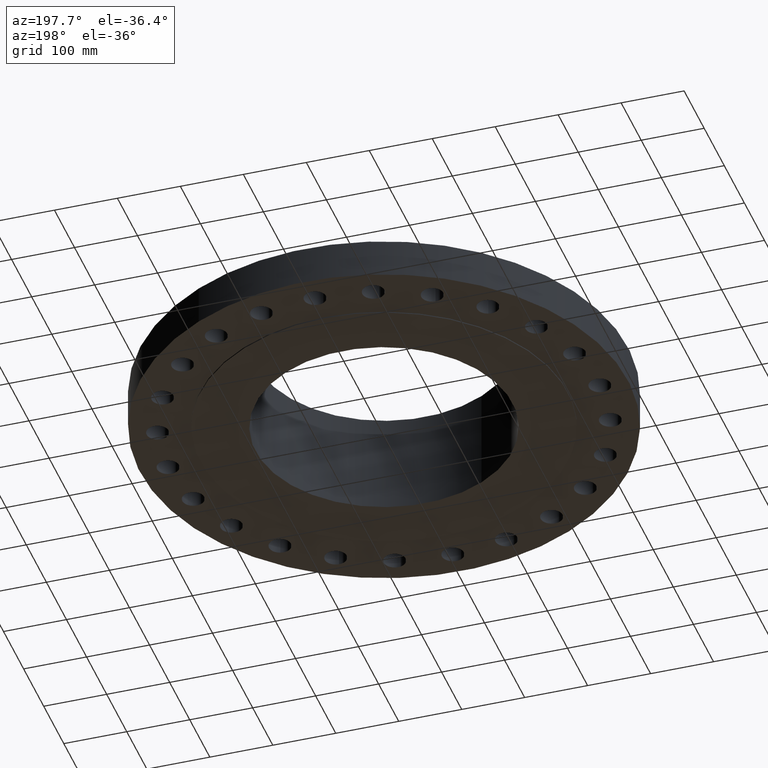
[diagram: clean part render]
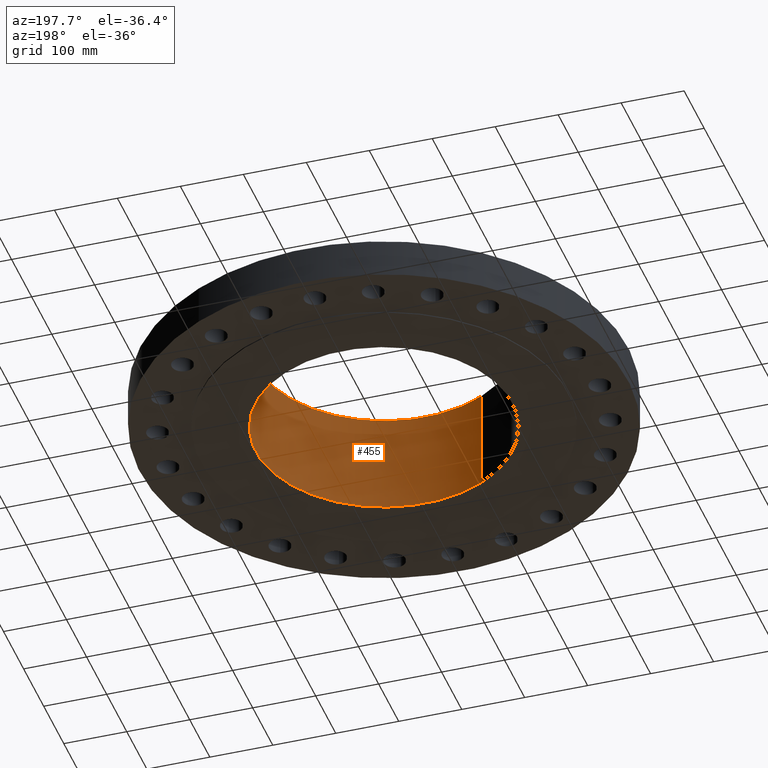
[diagram: same view with one face highlighted and labeled with its STEP entity id]
A machine part, auxiliary view. The second image highlights one B-rep face of the part: STEP entity #455.
In plain terms, the highlighted cylindrical surface (partial cylindrical patch) has radius 203.987 mm, axis along (0, 0, -1).
Its self-contained STEP definition (entity closure, byte-faithful):
#374=AXIS2_PLACEMENT_3D('Circle Axis2P3D',#372,#373,$) ;
#416=AXIS2_PLACEMENT_3D('Cylinder Axis2P3D',#413,#414,#415) ;
#446=AXIS2_PLACEMENT_3D('Circle Axis2P3D',#444,#445,$) ;
#367=CARTESIAN_POINT('Vertex',(-3.85026650055,-7.04786555457,6.32000000003)) ;
#369=CARTESIAN_POINT('Vertex',(3.85026650055,7.04786555457,6.32000000003)) ;
#372=CARTESIAN_POINT('Axis2P3D Location',(0.,0.,6.32000000003)) ;
#413=CARTESIAN_POINT('Axis2P3D Location',(0.,0.,3.12875000001)) ;
#418=CARTESIAN_POINT('Line Origine',(-3.85026650055,-7.04786555457,3.12875000001)) ;
#422=CARTESIAN_POINT('Vertex',(-3.85026650055,-7.04786555457,-0.0625000000003)) ;
#429=CARTESIAN_POINT('Vertex',(3.85026650055,7.04786555457,-0.0625000000003)) ;
#432=CARTESIAN_POINT('Line Origine',(3.85026650055,7.04786555457,3.12875000001)) ;
#444=CARTESIAN_POINT('Axis2P3D Location',(0.,0.,-0.0625000000003)) ;
#373=DIRECTION('Axis2P3D Direction',(0.,0.,-0.0393700787402)) ;
#414=DIRECTION('Axis2P3D Direction',(0.,0.,-0.0393700787402)) ;
#415=DIRECTION('Axis2P3D XDirection',(0.0188750212049,0.0345504945626,0.)) ;
#419=DIRECTION('Vector Direction',(0.,0.,-0.0393700787402)) ;
#433=DIRECTION('Vector Direction',(0.,0.,-0.0393700787402)) ;
#445=DIRECTION('Axis2P3D Direction',(0.,0.,-0.0393700787402)) ;
#420=VECTOR('Line Direction',#419,0.0393700787402) ;
#434=VECTOR('Line Direction',#433,0.0393700787402) ;
#450=ORIENTED_EDGE('',*,*,#376,.F.) ;
#451=ORIENTED_EDGE('',*,*,#436,.T.) ;
#452=ORIENTED_EDGE('',*,*,#448,.T.) ;
#453=ORIENTED_EDGE('',*,*,#424,.F.) ;
#455=ADVANCED_FACE('PartBody',(#454),#417,.F.) ;
#375=CIRCLE('generated circle',#374,8.03100000003) ;
#447=CIRCLE('generated circle',#446,8.03100000003) ;
#417=CYLINDRICAL_SURFACE('generated cylinder',#416,8.03100000003) ;
#376=EDGE_CURVE('',#370,#368,#375,.T.) ;
#424=EDGE_CURVE('',#368,#423,#421,.T.) ;
#436=EDGE_CURVE('',#370,#430,#435,.T.) ;
#448=EDGE_CURVE('',#430,#423,#447,.T.) ;
#449=EDGE_LOOP('',(#450,#451,#452,#453)) ;
#454=FACE_OUTER_BOUND('',#449,.T.) ;
#421=LINE('Line',#418,#420) ;
#435=LINE('Line',#432,#434) ;
#368=VERTEX_POINT('',#367) ;
#370=VERTEX_POINT('',#369) ;
#423=VERTEX_POINT('',#422) ;
#430=VERTEX_POINT('',#429) ;